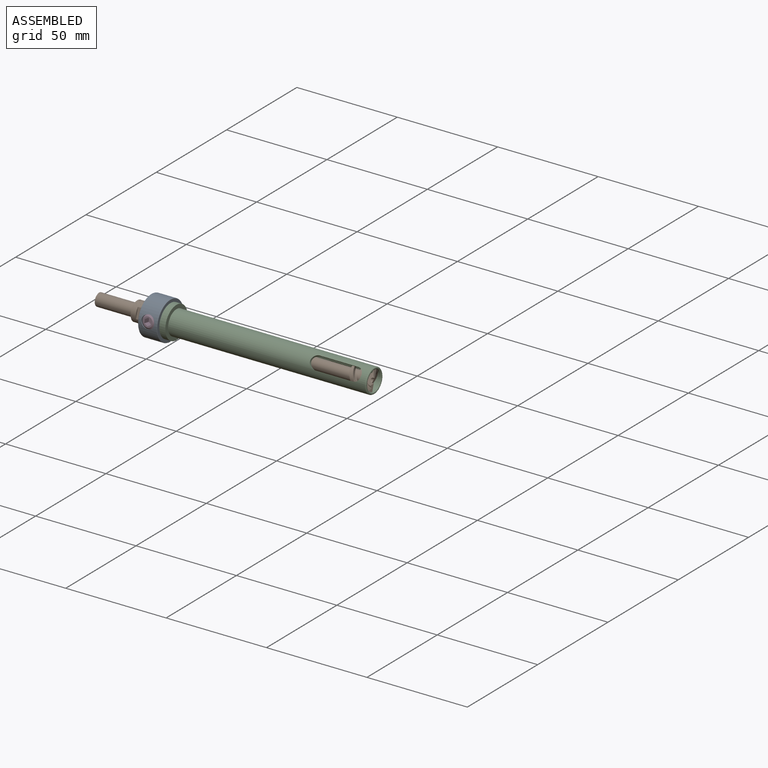
[diagram: assembled view]
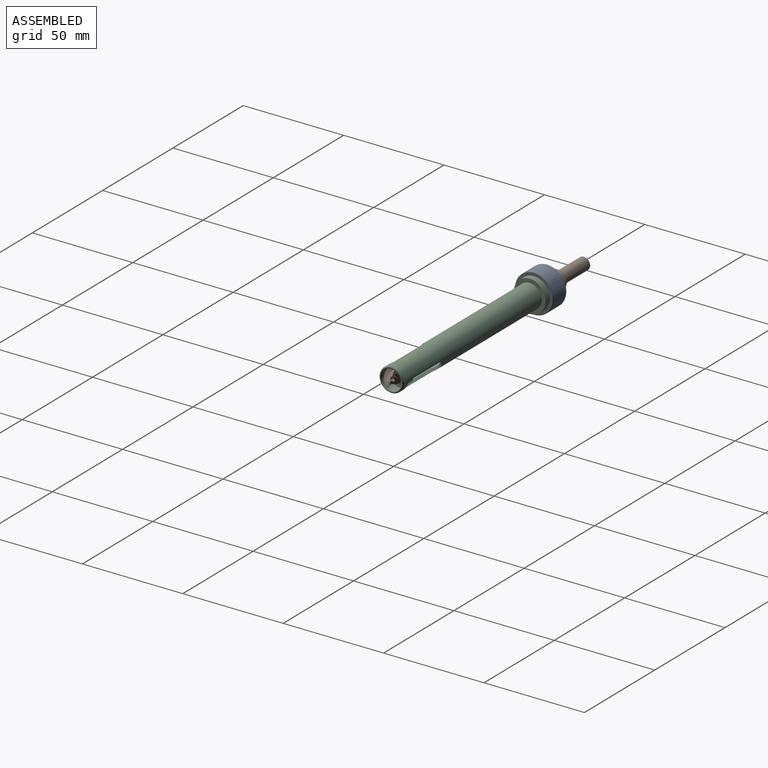
[diagram: assembled view, second angle]
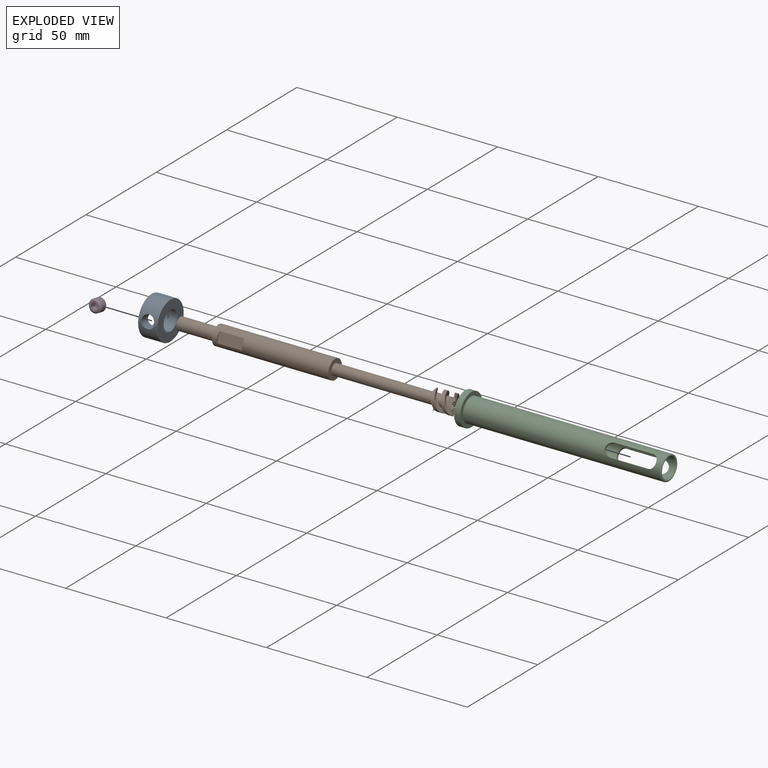
[diagram: exploded view]
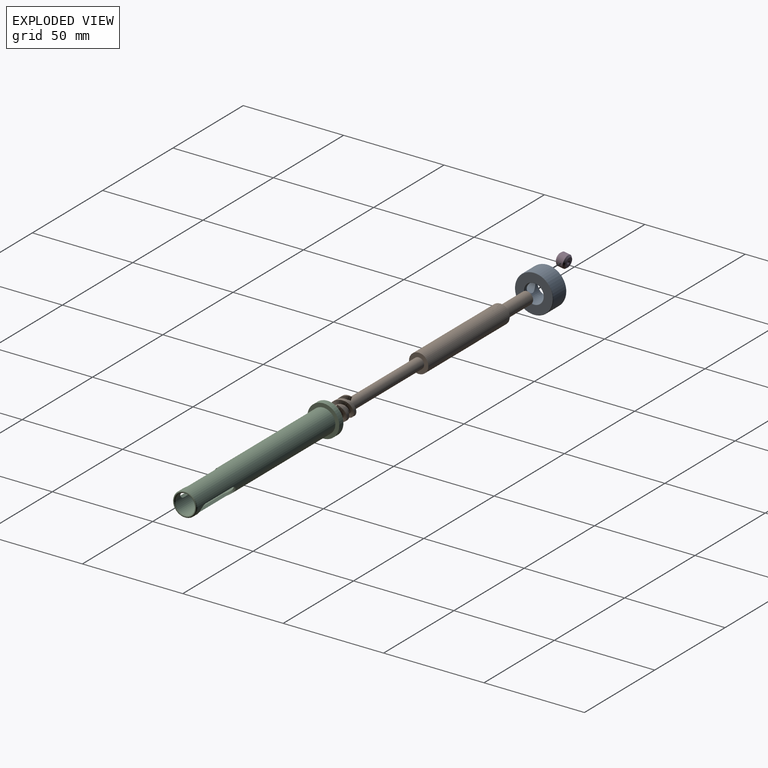
[diagram: exploded view, second angle]
ASSEMBLY  parts=4 mates=3
PART A: 9 faces, bbox 20.6x20.6x9.5 mm
  f0: plane 18.67x18.67mm, normal (0,0,1), area 196.7mm2, adj f6,f8
  f1: plane 18.67x18.67mm, normal (0,0,-1), area 196.7mm2, adj f5,f7
  f2: cylinder r=9.53mm len=19.05mm, axis (0,0,-1), area 515.2mm2, adj f4,f7,f8
  f3: cylinder r=4.76mm len=9.53mm, axis (0,0,-1), area 239.8mm2, adj f4,f5,f6
  f4: cylinder r=3.17mm len=6.35mm, axis (0,-1,0), area 101.3mm2, adj f2,f3
  f5: torus R=4.95mm, axis (0,0,1), area 9.1mm2, adj f1,f3
  f6: torus R=4.95mm, axis (0,0,1), area 9.1mm2, adj f0,f3
  f7: torus R=9.33mm, axis (0,0,1), area 17.8mm2, adj f1,f2
  f8: torus R=9.33mm, axis (0,0,1), area 17.8mm2, adj f0,f2
PART B: 67 faces, bbox 138.2x9.9x9.9 mm
  f0: cylinder r=4.8mm len=38mm, axis (-1,0,0), area 1146.1mm2, adj f18,f27
  f1: plane 9.53x9.53mm, normal (-1,0,0), area 41.2mm2, adj f25,f28
  f2: cylinder r=1.07mm len=136.99mm, axis (-1,0,0), area 919.1mm2, adj f3,f6,f20,f21,f22,f26
  f3: cylinder r=1.07mm len=0.54mm, axis (-1,0,0), area 0.1mm2, adj f2,f20,f21
  f4: cylinder r=4.8mm len=10mm, axis (-1,0,0), area 49.3mm2, adj f5,f9,f17,f22,f23
  f5: bspline ~10x9.6mm, area 37.8mm2, adj f4,f14,f17,f21,f22
  f6: plane 7.2x3.17mm, normal (0.82,-0.53,0.23), area 12.6mm2, adj f2,f8,f10,f15,f20,f22,f23
  f7: cylinder r=4.8mm len=10mm, axis (-1,0,0), area 49.3mm2, adj f8,f11,f17,f20,f24
  f8: bspline ~10x9.6mm, area 37.8mm2, adj f6,f7,f15,f17,f20
  f9: bspline ~11.25x9.6mm, area 44.7mm2, adj f4,f16,f17,f23
  f10: cylinder r=2.8mm len=9.63mm, axis (-1,0,0), area 36.1mm2, adj f6,f15,f16,f17,f23
  f11: bspline ~11.25x9.6mm, area 44.7mm2, adj f7,f13,f17,f24
  f12: cylinder r=2.8mm len=9.63mm, axis (-1,0,0), area 36.1mm2, adj f13,f14,f17,f21,f24
  f13: bspline ~10.6x6.1mm, area 7.8mm2, adj f11,f12,f17,f24
  f14: bspline ~9.11x6.1mm, area 6.6mm2, adj f5,f12,f17,f21
  f15: bspline ~9.11x6.1mm, area 6.6mm2, adj f6,f8,f10,f17
  f16: bspline ~10.6x6.1mm, area 7.8mm2, adj f9,f10,f17,f23
  f17: plane 9.54x9.44mm, normal (-1,0,0), area 18.9mm2, adj f4,f5,f7,f8,f9,f10,f11,f12
  f18: plane 9.6x9.6mm, normal (1,0,0), area 49.5mm2, adj f0,f19
  f19: cylinder r=2.7mm len=50mm, axis (1,0,0), area 848.2mm2, adj f17,f18
  f20: plane 3.76x2.01mm, normal (-0.47,-0.84,-0.28), area 6mm2, adj f2,f3,f6,f7,f8,f21,f24
  f21: plane 7.2x3.17mm, normal (0.82,0.53,-0.23), area 12.6mm2, adj f2,f3,f5,f12,f14,f20,f22,f24
  f22: plane 3.76x2.01mm, normal (-0.47,0.84,0.28), area 6mm2, adj f2,f4,f5,f6,f21,f23
  f23: plane 4.06x2.88mm, normal (0.97,-0.25,-0.08), area 4.5mm2, adj f4,f6,f9,f10,f16,f22
  f24: plane 4.06x2.88mm, normal (0.97,0.25,0.08), area 4.5mm2, adj f7,f11,f12,f13,f20,f21
  f25: cylinder r=3.1mm len=19mm, axis (-1,0,0), area 370.1mm2, adj f1,f26
  f26: plane 6.2x6.2mm, normal (-1,0,0), area 26.6mm2, adj f2,f25
  f27: plane 9.6x9.6mm, normal (-1,0,0), area 1mm2, adj f0,f28
  f28: cylinder r=4.77mm len=20mm, axis (1,0,0), area 530mm2, adj f1,f27,f29,f30,f31,f32,f33,f34
  f29: plane 12.35x4.92mm, normal (0,0.95,0.32), area 64mm2, adj f28,f30,f31
  f30: plane 4.92x1.8mm, normal (-1,0,0), area 2.7mm2, adj f28,f29
  f31: plane 4.92x1.8mm, normal (1,0,0), area 2.7mm2, adj f28,f29
  f32: plane 2.93x2.78mm, normal (1,0,0), area 0.1mm2, adj f28,f34,f35,f36
  f33: plane 2.93x2.78mm, normal (-1,0,0), area 0.1mm2, adj f28,f34,f35,f36
  f34: plane 0.05x0.02mm, normal (0,-0.37,-0.93), area 0mm2, adj f28,f32,f33,f36
  f35: plane 0.05x0.02mm, normal (0,0.95,0.32), area 0mm2, adj f28,f32,f33,f36
  f36: cylinder r=4.75mm len=2.91mm, axis (-1,0,0), area 0.2mm2, adj f32,f33,f34,f35
  f37: plane 2.93x2.78mm, normal (1,0,0), area 0.1mm2, adj f28,f39,f40,f41
  f38: plane 2.93x2.78mm, normal (-1,0,0), area 0.1mm2, adj f28,f39,f40,f41
  f39: plane 0.05x0.02mm, normal (0,-0.37,-0.93), area 0mm2, adj f28,f37,f38,f41
  f40: plane 0.05x0.02mm, normal (0,0.95,0.32), area 0mm2, adj f28,f37,f38,f41
  f41: cylinder r=4.75mm len=2.91mm, axis (-1,0,0), area 0.2mm2, adj f37,f38,f39,f40
  f42: plane 2.93x2.78mm, normal (1,0,0), area 0.1mm2, adj f28,f44,f45,f46
  f43: plane 2.93x2.78mm, normal (-1,0,0), area 0.1mm2, adj f28,f44,f45,f46
  f44: plane 0.05x0.02mm, normal (0,-0.37,-0.93), area 0mm2, adj f28,f42,f43,f46
  f45: plane 0.05x0.02mm, normal (0,0.95,0.32), area 0mm2, adj f28,f42,f43,f46
  f46: cylinder r=4.75mm len=2.91mm, axis (-1,0,0), area 0.2mm2, adj f42,f43,f44,f45
  f47: plane 2.93x2.78mm, normal (1,0,0), area 0.1mm2, adj f28,f49,f50,f51
  f48: plane 2.93x2.78mm, normal (-1,0,0), area 0.1mm2, adj f28,f49,f50,f51
  f49: plane 0.05x0.02mm, normal (0,-0.37,-0.93), area 0mm2, adj f28,f47,f48,f51
  f50: plane 0.05x0.02mm, normal (0,0.95,0.32), area 0mm2, adj f28,f47,f48,f51
  f51: cylinder r=4.75mm len=2.91mm, axis (-1,0,0), area 0.2mm2, adj f47,f48,f49,f50
  f52: plane 2.37x2.25mm, normal (1,0,0), area 0.1mm2, adj f28,f54,f55,f56
  f53: plane 2.37x2.25mm, normal (-1,0,0), area 0.1mm2, adj f28,f54,f55,f56
  f54: plane 0.05x0.02mm, normal (0,-0.45,-0.89), area 0mm2, adj f28,f52,f53,f56
  f55: plane 0.05x0.02mm, normal (0,0.92,0.4), area 0mm2, adj f28,f52,f53,f56
  f56: cylinder r=4.75mm len=2.36mm, axis (-1,0,0), area 0.2mm2, adj f52,f53,f54,f55
  f57: plane 2.37x2.25mm, normal (1,0,0), area 0.1mm2, adj f28,f59,f60,f61
  f58: plane 2.37x2.25mm, normal (-1,0,0), area 0.1mm2, adj f28,f59,f60,f61
  f59: plane 0.05x0.02mm, normal (0,-0.45,-0.89), area 0mm2, adj f28,f57,f58,f61
  f60: plane 0.05x0.02mm, normal (0,0.92,0.4), area 0mm2, adj f28,f57,f58,f61
  f61: cylinder r=4.75mm len=2.36mm, axis (-1,0,0), area 0.2mm2, adj f57,f58,f59,f60
  f62: plane 2.37x2.25mm, normal (1,0,0), area 0.1mm2, adj f28,f64,f65,f66
  f63: plane 2.37x2.25mm, normal (-1,0,0), area 0.1mm2, adj f28,f64,f65,f66
  f64: plane 0.05x0.02mm, normal (0,-0.45,-0.89), area 0mm2, adj f28,f62,f63,f66
  f65: plane 0.05x0.02mm, normal (0,0.92,0.4), area 0mm2, adj f28,f62,f63,f66
  f66: cylinder r=4.75mm len=2.36mm, axis (-1,0,0), area 0.2mm2, adj f62,f63,f64,f65
PART C: 16 faces, bbox 101.6x15.9x15.9 mm
  f0: cylinder r=4.89mm len=101.05mm, axis (-1,0,0), area 2773.9mm2, adj f2,f5,f6,f7,f8,f9,f10,f11
  f1: cylinder r=6mm len=98.04mm, axis (1,0,0), area 3375.1mm2, adj f4,f5,f6,f7,f8,f9,f10,f11
  f2: plane 15.88x15.88mm, normal (-1,0,0), area 122.8mm2, adj f0,f3
  f3: cylinder r=7.94mm len=15.88mm, axis (-1,0,0), area 149.6mm2, adj f2,f4
  f4: plane 15.88x15.88mm, normal (1,0,0), area 84.8mm2, adj f1,f3
  f5: cylinder r=3.17mm len=6.35mm, axis (0,1,0), area 12.3mm2, adj f0,f1,f6,f8
  f6: plane 19.05x1.37mm, normal (0,0,1), area 26.1mm2, adj f0,f1,f5,f7
  f7: cylinder r=3.17mm len=6.35mm, axis (0,1,0), area 12.3mm2, adj f0,f1,f6,f8
  f8: plane 19.05x1.37mm, normal (0,0,-1), area 26.1mm2, adj f0,f1,f5,f7
  f9: plane 19.05x1.37mm, normal (0,0,-1), area 26.1mm2, adj f0,f1,f10,f12
  f10: cylinder r=3.17mm len=6.35mm, axis (0,1,0), area 12.3mm2, adj f0,f1,f9,f11
  f11: plane 19.05x1.37mm, normal (0,0,1), area 26.1mm2, adj f0,f1,f10,f12
  f12: cylinder r=3.17mm len=6.35mm, axis (0,1,0), area 12.3mm2, adj f0,f1,f9,f11
  f13: torus R=5.45mm, axis (1,0,0), area 59.2mm2, adj f14,f15
  f14: cone r=6mm half-angle=89.1deg, axis (-1,0,0), area 0mm2, adj f1,f13
  f15: cone r=4.68mm half-angle=89.1deg, axis (-1,0,0), area 0.3mm2, adj f0,f13
PART D: 13 faces, bbox 6.4x4.8x6.4 mm
  f0: plane 4.82x4.82mm, normal (0,1,0), area 9.5mm2, adj f1,f6,f7,f8,f9,f10,f11
  f1: cone r=2.41mm half-angle=45deg, axis (0,-1,0), area 19mm2, adj f0,f2
  f2: cylinder r=3.17mm len=6.35mm, axis (0,1,0), area 64.4mm2, adj f1,f3
  f3: cone r=3.17mm half-angle=45deg, axis (0,1,0), area 19mm2, adj f2,f4
  f4: plane 4.82x4.82mm, normal (0,-1,0), area 15.6mm2, adj f3,f5
  f5: cone r=0.92mm half-angle=45deg, axis (0,-1,0), area 3.8mm2, adj f4
  f6: plane 3.18x1.59mm, normal (-0.87,0,0.5), area 5.8mm2, adj f0,f7,f11,f12
  f7: plane 3.18x1.59mm, normal (-0.87,0,-0.5), area 5.8mm2, adj f0,f6,f8,f12
  f8: plane 3.18x1.83mm, normal (0,0,-1), area 5.8mm2, adj f0,f7,f9,f12
  f9: plane 3.18x1.59mm, normal (0.87,0,-0.5), area 5.8mm2, adj f0,f8,f10,f12
  f10: plane 3.18x1.59mm, normal (0.87,0,0.5), area 5.8mm2, adj f0,f9,f11,f12
  f11: plane 3.18x1.83mm, normal (0,0,1), area 5.8mm2, adj f0,f6,f10,f12
  f12: plane 3.67x3.18mm, normal (0,1,0), area 8.7mm2, adj f6,f7,f8,f9,f10,f11
PLACE A rot(axis=(0.71,-0.06,-0.71),172.9deg) t=(-53.59,-34.36,45.54)mm
PLACE B rot(axis=(1,0,0),145deg) t=(-10.85,-34.36,45.54)mm
PLACE C rot(axis=(-1,0,0),35deg) t=(1.97,-34.36,45.54)mm
PLACE D rot(axis=(0.71,-0.06,-0.71),172.9deg) t=(-53.59,-34.36,45.54)mm
MATE cylindrical A.f2 <-> B.f0  axis (1,0,0) through (-58.16,-34.36,45.54)mm
MATE planar C.f0 <-> A.f2  axis (-1,0,0) through (-48.82,-34.36,45.54)mm
MATE cylindrical C.f0 <-> B.f0  axis (-1,0,0) through (1.7,-34.36,45.54)mm
